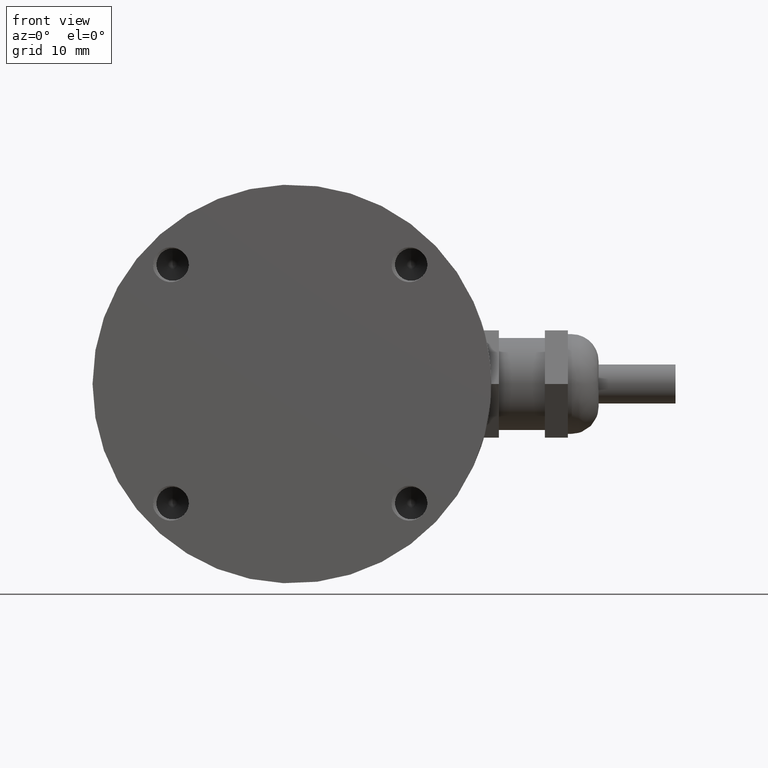
[diagram: clean part render]
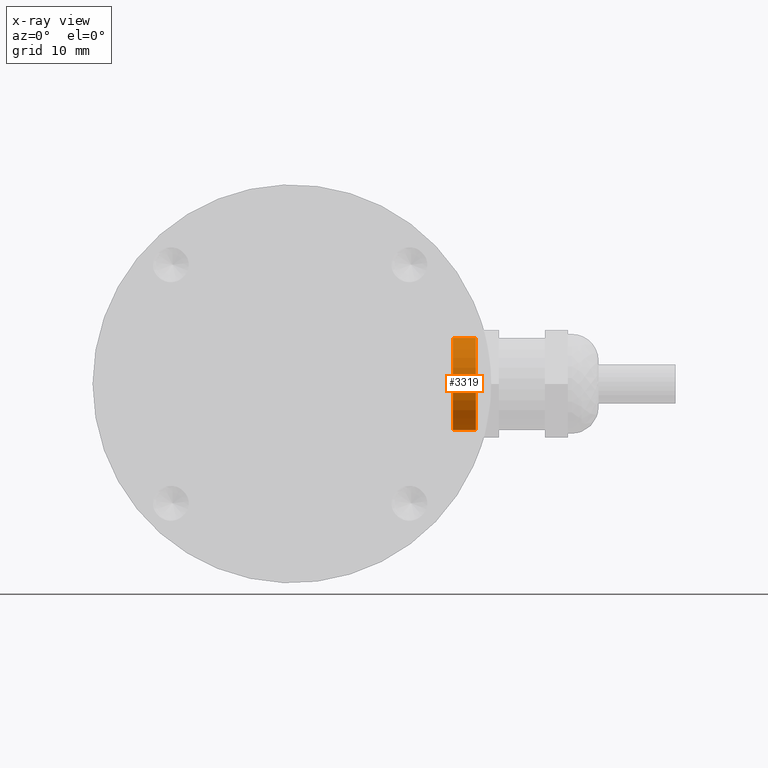
[diagram: x-ray — body ghosted, one internal face saturated and labeled with its STEP entity id]
A machine part, front view, then the same camera in x-ray: the body is ghosted and one INTERNAL B-rep face — a face not visible from any outside direction — is saturated and labeled: STEP entity #3319.
In plain terms, the highlighted cylindrical surface (bore or boss wall) has radius 6 mm, axis along (-1, 0, 0).
Its self-contained STEP definition (entity closure, byte-faithful):
#351=FACE_OUTER_BOUND('',#564,.T.);
#564=EDGE_LOOP('',(#2097,#2098,#2099,#2100));
#789=LINE('',#4513,#994);
#994=VECTOR('',#3806,6.);
#1199=CIRCLE('',#3549,6.);
#1200=CIRCLE('',#3550,6.);
#1244=VERTEX_POINT('',#4510);
#1245=VERTEX_POINT('',#4512);
#1572=EDGE_CURVE('',#1244,#1244,#1199,.T.);
#1573=EDGE_CURVE('',#1244,#1245,#789,.T.);
#1574=EDGE_CURVE('',#1245,#1245,#1200,.T.);
#2097=ORIENTED_EDGE('',*,*,#1572,.F.);
#2098=ORIENTED_EDGE('',*,*,#1573,.T.);
#2099=ORIENTED_EDGE('',*,*,#1574,.F.);
#2100=ORIENTED_EDGE('',*,*,#1573,.F.);
#3147=CYLINDRICAL_SURFACE('',#3548,6.);
#3319=ADVANCED_FACE('',(#351),#3147,.T.);
#3548=AXIS2_PLACEMENT_3D('',#4509,#3802,#3803);
#3549=AXIS2_PLACEMENT_3D('',#4511,#3804,#3805);
#3550=AXIS2_PLACEMENT_3D('',#4514,#3807,#3808);
#3802=DIRECTION('center_axis',(-1.,0.,0.));
#3803=DIRECTION('ref_axis',(0.,0.,1.));
#3804=DIRECTION('center_axis',(-1.,0.,0.));
#3805=DIRECTION('ref_axis',(0.,0.,1.));
#3806=DIRECTION('',(1.,0.,0.));
#3807=DIRECTION('center_axis',(1.,0.,0.));
#3808=DIRECTION('ref_axis',(0.,0.,1.));
#4509=CARTESIAN_POINT('Origin',(0.,0.,0.));
#4510=CARTESIAN_POINT('',(-3.,-7.34788079488412E-16,-6.));
#4511=CARTESIAN_POINT('Origin',(-3.,0.,0.));
#4512=CARTESIAN_POINT('',(0.,-7.34788079488412E-16,-6.));
#4513=CARTESIAN_POINT('',(0.,-7.34788079488412E-16,-6.));
#4514=CARTESIAN_POINT('Origin',(0.,0.,0.));